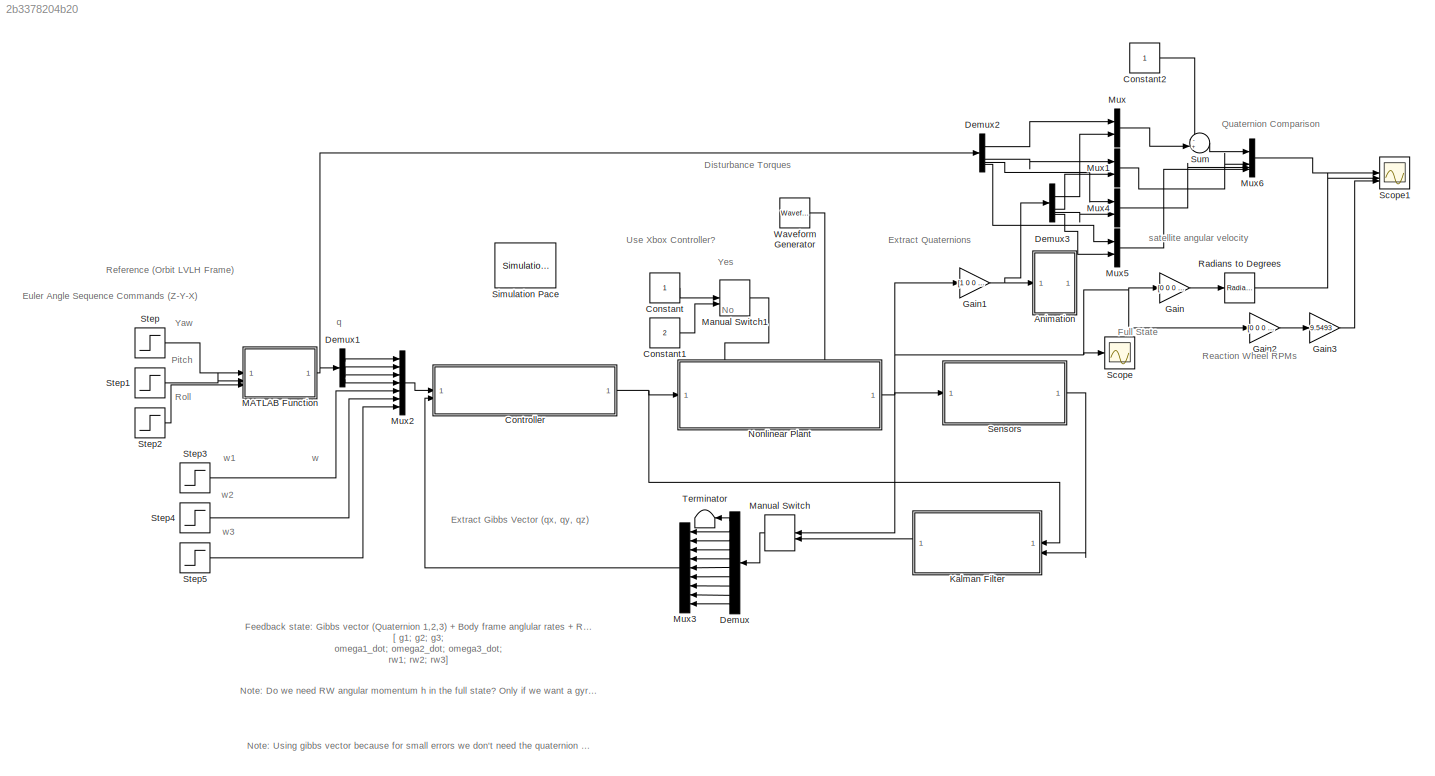
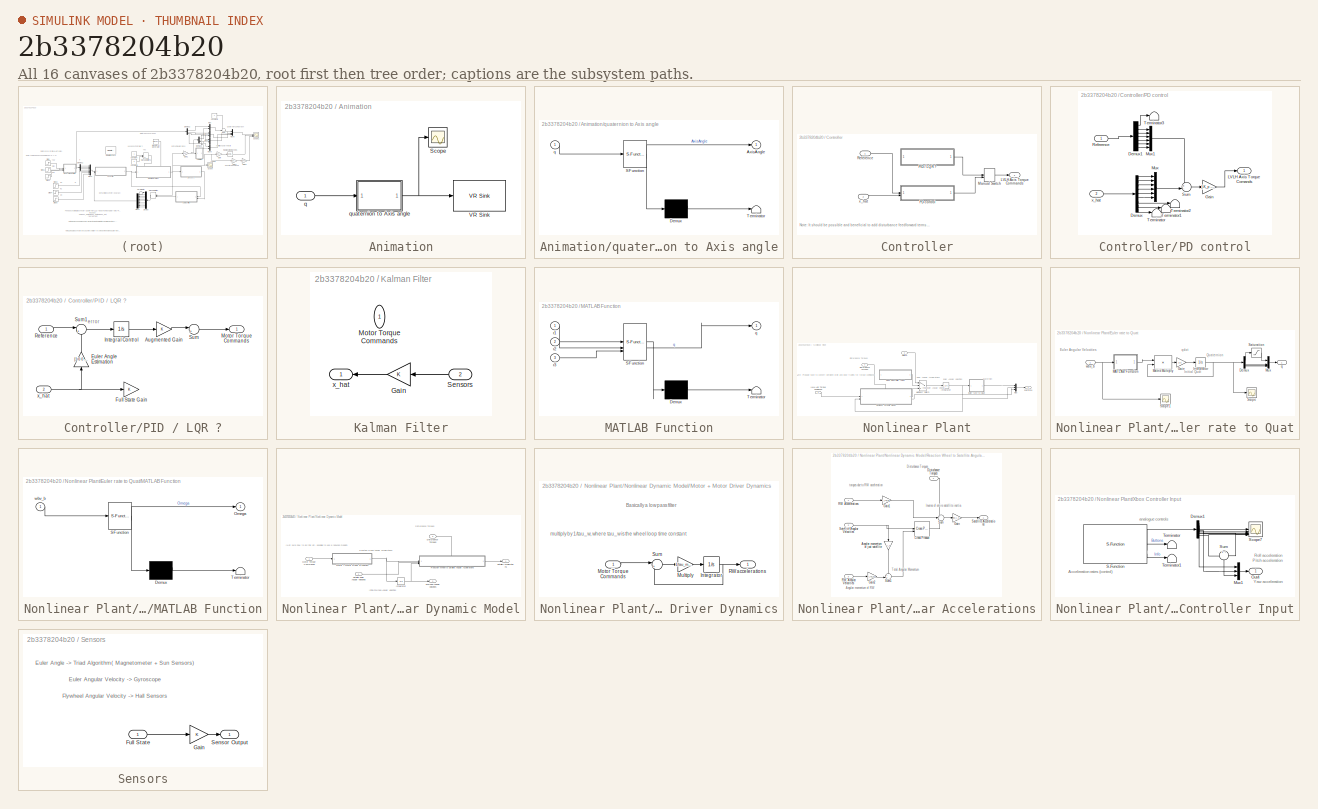
[diagram: thumbnail index - all 16 canvases of the model, root first then tree order]
MODEL slx_2b3378204b20
KIND model
CONFIG AbsTol = auto
CONFIG EnableMultiTasking = off
CONFIG FixedStep = auto
CONFIG MaxStep = auto
CONFIG MinStep = auto
CONFIG RelTol = 1e-3
CONFIG SampleTimeConstraint = Unconstrained
CONFIG SolverName = VariableStepAuto
CONFIG StartTime = 0.0
CONFIG StopTime = 600
BLOCK [SubSystem] Animation
BLOCK [Scope] Animation/Scope
  Floating = off
  NumInputPorts = 1
  ScopeSpecificationString = Simulink.scopes.TimeScopeBlockCfg('CurrentConfiguration', extmgr.ConfigurationSet(extmgr.Configuration('Core','General UI',true),extmgr.Configuration('Core','Source UI',true),extmgr.Configuration('Sources','WiredSimulink',true),extmgr.Configuration('Visuals','Time Domain',true,'SerializedDisplays',{struct('MinYLimReal','-1.00000','MaxYLimReal','1.00000','YLabelReal','','MinYLimMag','0.00000','MaxY...<+1433ch>
BLOCK [Reference] Animation/VR Sink  REF=vrlib/VR Sink
  InstantiateOnLoad = on
  SourceBlock = vrlib/VR Sink
  SourceType = Virtual Reality Sink
BLOCK [Inport] Animation/q
BLOCK [SubSystem] Animation/quaternion to Axis angle
  ErrorFcn = Stateflow.Translate.translate
  PermitHierarchicalResolution = ExplicitOnly
  SFBlockType = MATLAB Function
  TreatAsAtomicUnit = on
BLOCK [Demux] Animation/quaternion to Axis angle/ Demux 
  Outputs = 1
BLOCK [S-Function] Animation/quaternion to Axis angle/ SFunction 
  EnableBusSupport = on
  FunctionName = sf_sfun
  PortCounts = [1 2]
  SFcnIsStateOwnerBlock = off
  SFunctionDeploymentMode = off
  Tag = Stateflow S-Function 1
BLOCK [Terminator] Animation/quaternion to Axis angle/ Terminator 
BLOCK [Outport] Animation/quaternion to Axis angle/AxisAngle
BLOCK [Inport] Animation/quaternion to Axis angle/q
BLOCK [Constant] Constant
BLOCK [Constant] Constant1
  Value = 2
BLOCK [Constant] Constant2
BLOCK [SubSystem] Controller
BLOCK [Outport] Controller/LVLH Axis Torque Commands
BLOCK [ManualSwitch] Controller/Manual Switch
  CurrentSetting = 0
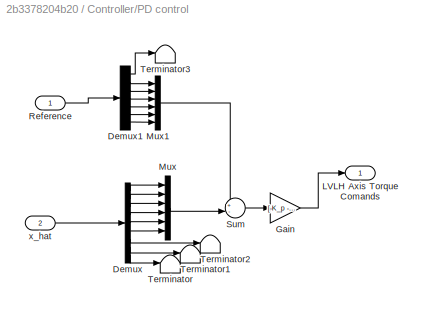
BLOCK [SubSystem] Controller/PD control
BLOCK [Demux] Controller/PD control/Demux
  Outputs = 9
BLOCK [Demux] Controller/PD control/Demux1
  Outputs = 7
BLOCK [Gain] Controller/PD control/Gain
  Gain = [-K_p -K_pd]
  Multiplication = Matrix(K*u) (u vector)
BLOCK [Outport] Controller/PD control/LVLH Axis Torque Comands
BLOCK [Mux] Controller/PD control/Mux
  DisplayOption = bar
  Inputs = 6
BLOCK [Mux] Controller/PD control/Mux1
  DisplayOption = bar
  Inputs = 6
BLOCK [Inport] Controller/PD control/Reference
BLOCK [Sum] Controller/PD control/Sum
  Inputs = +-|
BLOCK [Terminator] Controller/PD control/Terminator
BLOCK [Terminator] Controller/PD control/Terminator1
BLOCK [Terminator] Controller/PD control/Terminator2
BLOCK [Terminator] Controller/PD control/Terminator3
BLOCK [Inport] Controller/PD control/x_hat
  Port = 2
BLOCK [SubSystem] Controller/PID // LQR ?
BLOCK [Gain] Controller/PID // LQR ?/Augmented Gain
BLOCK [Gain] Controller/PID // LQR ?/Euler Angle Estimation
  Gain = [1 0 0 0 0 0 0 0 0; 0 1 0 0 0 0 0 0 0; 0 0 1 0 0 0 0 0 0]
  Multiplication = Matrix(K*u) (u vector)
  NameLocation = right
BLOCK [Gain] Controller/PID // LQR ?/Full State Gain
BLOCK [Integrator] Controller/PID // LQR ?/Integral Control
BLOCK [Outport] Controller/PID // LQR ?/Motor Torque Commands
BLOCK [Inport] Controller/PID // LQR ?/Reference
BLOCK [Sum] Controller/PID // LQR ?/Sum
  Inputs = |+-
BLOCK [Sum] Controller/PID // LQR ?/Sum1
  Inputs = |+-
BLOCK [Inport] Controller/PID // LQR ?/x_hat
  Port = 2
BLOCK [Inport] Controller/Reference
BLOCK [Inport] Controller/x_hat
  Port = 2
BLOCK [Demux] Demux
  Outputs = 10
BLOCK [Demux] Demux1
BLOCK [Demux] Demux2
BLOCK [Demux] Demux3
BLOCK [Gain] Gain
  Gain = [0 0 0 0 1 0 0 0 0 0; 0 0 0 0 0 1 0 0 0 0; 0 0 0 0 0 0 1 0 0 0]
  Multiplication = Matrix(K*u) (u vector)
BLOCK [Gain] Gain1
  Gain = [1 0 0 0 0 0 0 0 0 0; 0 1 0 0 0 0 0 0 0 0; 0 0 1 0 0 0 0 0 0 0; 0 0 0 1 0 0 0 0 0 0]
  Multiplication = Matrix(K*u) (u vector)
BLOCK [Gain] Gain2
  Gain = [0 0 0 0 0 0 0 1 0 0; 0 0 0 0 0 0 0 0 1 0; 0 0 0 0 0 0 0 0 0 1]
  Multiplication = Matrix(K*u) (u vector)
BLOCK [Gain] Gain3
  Gain = 9.5493
BLOCK [SubSystem] Kalman Filter
BLOCK [Gain] Kalman Filter/Gain
BLOCK [Inport] Kalman Filter/Motor Torque Commands
  NameLocation = right
BLOCK [Inport] Kalman Filter/Sensors
  Port = 2
BLOCK [Outport] Kalman Filter/x_hat
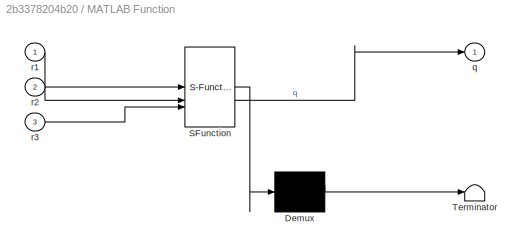
BLOCK [SubSystem] MATLAB Function
  ErrorFcn = Stateflow.Translate.translate
  PermitHierarchicalResolution = ExplicitOnly
  SFBlockType = MATLAB Function
  TreatAsAtomicUnit = on
BLOCK [Demux] MATLAB Function/ Demux 
  Outputs = 1
BLOCK [S-Function] MATLAB Function/ SFunction 
  EnableBusSupport = on
  FunctionName = sf_sfun
  PortCounts = [3 2]
  SFcnIsStateOwnerBlock = off
  SFunctionDeploymentMode = off
  Tag = Stateflow S-Function 3
BLOCK [Terminator] MATLAB Function/ Terminator 
BLOCK [Outport] MATLAB Function/q
BLOCK [Inport] MATLAB Function/r1
BLOCK [Inport] MATLAB Function/r2
  Port = 2
BLOCK [Inport] MATLAB Function/r3
  Port = 3
BLOCK [ManualSwitch] Manual Switch
BLOCK [ManualSwitch] Manual Switch1
  CurrentSetting = 0
BLOCK [Mux] Mux
  DisplayOption = bar
  Inputs = 2
BLOCK [Mux] Mux1
  DisplayOption = bar
  Inputs = 2
BLOCK [Mux] Mux2
  DisplayOption = bar
  Inputs = 7
BLOCK [Mux] Mux3
  DisplayOption = bar
  Inputs = 9
BLOCK [Mux] Mux4
  DisplayOption = bar
  Inputs = 2
BLOCK [Mux] Mux5
  DisplayOption = bar
  Inputs = 2
BLOCK [Mux] Mux6
  DisplayOption = bar
BLOCK [SubSystem] Nonlinear Plant
  PortSchema = {"entries":[{"content":{"sides":[{"content":{"connectorIds":["In1"]},"type":"ConnectorPlacement.EquallySpacedRectSide","uuid":"9b91c08c-2a90-4f12-ae99-41b2d0c7dbbf"},{"content":{"connectorIds":["Out1"],"side":"RIGHT"},"type":"ConnectorPlacement.EquallySpacedRectSide","uuid":"14ab69da-e910-4abb-8476-8d8dff4f3eb1"},{"content":{"connectorIds":["In2","In3"],"side":"TOP"},"type":"ConnectorPlacement.Equ...<+251ch>
BLOCK [Inport] Nonlinear Plant/Disturbance Torques
  Port = 3
BLOCK [SubSystem] Nonlinear Plant/Euler rate to Quat
BLOCK [Demux] Nonlinear Plant/Euler rate to Quat/Demux
BLOCK [Gain] Nonlinear Plant/Euler rate to Quat/Gain
  Gain = 1/2
BLOCK [Integrator] Nonlinear Plant/Euler rate to Quat/Integrator
  InitialCondition = [1 0 0 0]
BLOCK [SubSystem] Nonlinear Plant/Euler rate to Quat/MATLAB Function
  ErrorFcn = Stateflow.Translate.translate
  PermitHierarchicalResolution = ExplicitOnly
  SFBlockType = MATLAB Function
  TreatAsAtomicUnit = on
BLOCK [Demux] Nonlinear Plant/Euler rate to Quat/MATLAB Function/ Demux 
  Outputs = 1
BLOCK [S-Function] Nonlinear Plant/Euler rate to Quat/MATLAB Function/ SFunction 
  EnableBusSupport = on
  FunctionName = sf_sfun
  PortCounts = [1 2]
  SFcnIsStateOwnerBlock = off
  SFunctionDeploymentMode = off
  Tag = Stateflow S-Function 2
BLOCK [Terminator] Nonlinear Plant/Euler rate to Quat/MATLAB Function/ Terminator 
BLOCK [Outport] Nonlinear Plant/Euler rate to Quat/MATLAB Function/Omega
BLOCK [Inport] Nonlinear Plant/Euler rate to Quat/MATLAB Function/wbv_b
BLOCK [Product] Nonlinear Plant/Euler rate to Quat/Matrix Multiply
  Multiplication = Matrix(*)
BLOCK [Mux] Nonlinear Plant/Euler rate to Quat/Mux
  DisplayOption = bar
BLOCK [Saturate] Nonlinear Plant/Euler rate to Quat/Saturation
  LowerLimit = -1
  UpperLimit = 1
BLOCK [Scope] Nonlinear Plant/Euler rate to Quat/Scope
  Floating = off
  NumInputPorts = 1
  ScopeSpecificationString = Simulink.scopes.TimeScopeBlockCfg('CurrentConfiguration', extmgr.ConfigurationSet(extmgr.Configuration('Core','General UI',true),extmgr.Configuration('Core','Source UI',true),extmgr.Configuration('Sources','WiredSimulink',true,'DataLoggingVariableName','ScopeData7'),extmgr.Configuration('Visuals','Time Domain',true,'SerializedDisplays',{struct('MinYLimReal','-1.21752','MaxYLimReal','1.24639','YLab...<+1445ch>
BLOCK [Scope] Nonlinear Plant/Euler rate to Quat/Scope1
  Floating = off
  NumInputPorts = 1
  ScopeSpecificationString = Simulink.scopes.TimeScopeBlockCfg('CurrentConfiguration', extmgr.ConfigurationSet(extmgr.Configuration('Core','General UI',true),extmgr.Configuration('Core','Source UI',true),extmgr.Configuration('Sources','WiredSimulink',true,'DataLoggingVariableName','ScopeData8'),extmgr.Configuration('Visuals','Time Domain',true,'SerializedDisplays',{struct('MinYLimReal','-4.26022','MaxYLimReal','6.20803','YLab...<+1414ch>
BLOCK [Outport] Nonlinear Plant/Euler rate to Quat/q
BLOCK [Inport] Nonlinear Plant/Euler rate to Quat/wbv_b
BLOCK [Outport] Nonlinear Plant/Full State
BLOCK [Integrator] Nonlinear Plant/Integrator
  InitialCondition = [0.1 0.1 0.1]
BLOCK [Inport] Nonlinear Plant/LVLH Axis Torque Commands
BLOCK [MultiPortSwitch] Nonlinear Plant/Multiport Switch
  InputSameDT = off
  Inputs = 2
  SaturateOnIntegerOverflow = off
BLOCK [Mux] Nonlinear Plant/Mux
  DisplayOption = bar
  Inputs = 3
BLOCK [SubSystem] Nonlinear Plant/Nonlinear Dynamic Model
  PortSchema = {"entries":[{"content":{"sides":[{"content":{"connectorIds":["In1","In2"]},"type":"ConnectorPlacement.EquallySpacedRectSide","uuid":"b133188e-88ab-4812-87e5-a2cae8ba4a28"},{"content":{"connectorIds":["Out1","Out2"],"side":"RIGHT"},"type":"ConnectorPlacement.EquallySpacedRectSide","uuid":"aa801b93-c7f4-4f35-9e6f-1c95a6cb7d8e"},{"content":{"connectorIds":["In3"],"side":"TOP"},"type":"ConnectorPlacem...<+258ch>
BLOCK [Inport] Nonlinear Plant/Nonlinear Dynamic Model/Disturbance Torques
  Port = 3
BLOCK [Outport] Nonlinear Plant/Nonlinear Dynamic Model/Flywheel Angular Velocities
  Port = 2
BLOCK [Integrator] Nonlinear Plant/Nonlinear Dynamic Model/Integrator
BLOCK [SubSystem] Nonlinear Plant/Nonlinear Dynamic Model/Motor + Motor Driver Dynamics
BLOCK [Integrator] Nonlinear Plant/Nonlinear Dynamic Model/Motor + Motor Driver Dynamics/Integrator
BLOCK [Inport] Nonlinear Plant/Nonlinear Dynamic Model/Motor + Motor Driver Dynamics/Motor Torque Commands
BLOCK [Gain] Nonlinear Plant/Nonlinear Dynamic Model/Motor + Motor Driver Dynamics/Multiply
  Gain = 1/tau_motor_loop
BLOCK [Outport] Nonlinear Plant/Nonlinear Dynamic Model/Motor + Motor Driver Dynamics/RW accelerations
BLOCK [Sum] Nonlinear Plant/Nonlinear Dynamic Model/Motor + Motor Driver Dynamics/Sum
  Inputs = |+-
BLOCK [Inport] Nonlinear Plant/Nonlinear Dynamic Model/Motor Torque Commands
BLOCK [SubSystem] Nonlinear Plant/Nonlinear Dynamic Model/Reaction Wheel to Satellite Angular Accelerations
  PortSchema = {"entries":[{"content":{"sides":[{"content":{"connectorIds":["In1","In2","In3"]},"type":"ConnectorPlacement.EquallySpacedRectSide","uuid":"f49d1d70-9e85-4e1d-b156-8793e3211305"},{"content":{"connectorIds":["Out1"],"side":"RIGHT"},"type":"ConnectorPlacement.EquallySpacedRectSide","uuid":"35de67bb-178b-46d3-aa80-b5d9a68f06e3"},{"content":{"connectorIds":["In4"],"side":"TOP"},"type":"ConnectorPlaceme...<+257ch>
BLOCK [Gain] Nonlinear Plant/Nonlinear Dynamic Model/Reaction Wheel to Satellite Angular Accelerations/Angular momentum of just satellite
  Gain = I_s
  Multiplication = Matrix(K*u) (u vector)
  NameLocation = left
BLOCK [Reference] Nonlinear Plant/Nonlinear Dynamic Model/Reaction Wheel to Satellite Angular Accelerations/Cross Product  REF=matrix_library/Cross Product
  LibrarySourceBlock = simulink/Matrix\nOperations/Cross Product
  SourceBlock = matrix_library/Cross Product
  SourceType = CrossProduct
BLOCK [Inport] Nonlinear Plant/Nonlinear Dynamic Model/Reaction Wheel to Satellite Angular Accelerations/Disturbance Torques
  Port = 4
BLOCK [Gain] Nonlinear Plant/Nonlinear Dynamic Model/Reaction Wheel to Satellite Angular Accelerations/Gain
  Gain = inv_I_s
  Multiplication = Matrix(K*u) (u vector)
BLOCK [Gain] Nonlinear Plant/Nonlinear Dynamic Model/Reaction Wheel to Satellite Angular Accelerations/Gain1
  Gain = I_rw_zz
BLOCK [Gain] Nonlinear Plant/Nonlinear Dynamic Model/Reaction Wheel to Satellite Angular Accelerations/Gain2
  Gain = I_rw_zz
BLOCK [Inport] Nonlinear Plant/Nonlinear Dynamic Model/Reaction Wheel to Satellite Angular Accelerations/RW Accelerations
BLOCK [Inport] Nonlinear Plant/Nonlinear Dynamic Model/Reaction Wheel to Satellite Angular Accelerations/RW Angular Velocities
  Port = 3
BLOCK [Outport] Nonlinear Plant/Nonlinear Dynamic Model/Reaction Wheel to Satellite Angular Accelerations/Satellite Accelerations
BLOCK [Inport] Nonlinear Plant/Nonlinear Dynamic Model/Reaction Wheel to Satellite Angular Accelerations/Satellite Angular Velocities
  Port = 2
BLOCK [Sum] Nonlinear Plant/Nonlinear Dynamic Model/Reaction Wheel to Satellite Angular Accelerations/Sum
  Inputs = +--
BLOCK [Sum] Nonlinear Plant/Nonlinear Dynamic Model/Reaction Wheel to Satellite Angular Accelerations/Sum1
  Inputs = ++|
BLOCK [Outport] Nonlinear Plant/Nonlinear Dynamic Model/Satellite Accelerations
BLOCK [Inport] Nonlinear Plant/Nonlinear Dynamic Model/Satellite Euler Angular Velocities
  Port = 2
BLOCK [Inport] Nonlinear Plant/Switch
  Port = 2
BLOCK [SubSystem] Nonlinear Plant/Xbox Controller Input
BLOCK [Demux] Nonlinear Plant/Xbox Controller Input/Demux1
  Outputs = 6
BLOCK [Mux] Nonlinear Plant/Xbox Controller Input/Mux1
  DisplayOption = bar
  Inputs = 3
BLOCK [Outport] Nonlinear Plant/Xbox Controller Input/Out4
BLOCK [S-Function] Nonlinear Plant/Xbox Controller Input/S-Function
  EnableBusSupport = off
  FunctionName = XInput_Controller_SFun
  Parameters = 1
  SFcnIsStateOwnerBlock = off
  SFunctionDeploymentMode = off
BLOCK [Scope] Nonlinear Plant/Xbox Controller Input/Scope7
  Floating = off
  NumInputPorts = 6
  ScopeSpecificationString = Simulink.scopes.TimeScopeBlockCfg('CurrentConfiguration', extmgr.ConfigurationSet(extmgr.Configuration('Core','General UI',true),extmgr.Configuration('Core','Source UI',true),extmgr.Configuration('Sources','WiredSimulink',true,'DataLoggingVariableName','ScopeData1'),extmgr.Configuration('Visuals','Time Domain',true,'SerializedDisplays',{struct('MinYLimReal','-1.00000','MaxYLimReal','1.00000','YLab...<+4816ch>
BLOCK [Sum] Nonlinear Plant/Xbox Controller Input/Sum
  Inputs = +-
  NameLocation = left
BLOCK [Terminator] Nonlinear Plant/Xbox Controller Input/Terminator
BLOCK [Terminator] Nonlinear Plant/Xbox Controller Input/Terminator1
BLOCK [Reference] Radians to Degrees  REF=simulink_extras/Transformations/Radians
to Degrees
  SourceBlock = simulink_extras/Transformations/Radians\nto Degrees
  SourceType = RadiansToDegrees
BLOCK [Scope] Scope
  Floating = off
  NumInputPorts = 1
  ScopeSpecificationString = Simulink.scopes.TimeScopeBlockCfg('CurrentConfiguration', extmgr.ConfigurationSet(extmgr.Configuration('Core','General UI',true),extmgr.Configuration('Core','Source UI',true),extmgr.Configuration('Sources','WiredSimulink',true,'DataLoggingVariableName','ScopeData1'),extmgr.Configuration('Visuals','Time Domain',true,'SerializedDisplays',{struct('MinYLimReal','-46.58169','MaxYLimReal','33.52658','YL...<+1680ch>
BLOCK [Scope] Scope1
  Floating = off
  NumInputPorts = 3
  ScopeSpecificationString = Simulink.scopes.TimeScopeBlockCfg('CurrentConfiguration', extmgr.ConfigurationSet(extmgr.Configuration('Core','General UI',true),extmgr.Configuration('Core','Source UI',true),extmgr.Configuration('Sources','WiredSimulink',true,'DataLoggingVariableName','ScopeData1'),extmgr.Configuration('Visuals','Time Domain',true,'SerializedDisplays',{struct('MinYLimReal','-0.29234','MaxYLimReal','0.40661','YLab...<+3101ch>
BLOCK [SubSystem] Sensors
BLOCK [Inport] Sensors/Full State
BLOCK [Gain] Sensors/Gain
BLOCK [Outport] Sensors/Sensor Output
BLOCK [Reference] Simulation Pace  REF=aerolibanimutils/Simulation Pace
  AttributesFormatString = %<SleepMode>\n%<SimulationPace> sec/sec
  SourceBlock = aerolibanimutils/Simulation Pace
  SourceType = Simulation Pace
BLOCK [Step] Step
  After = 0.1
  SampleTime = 0
  Time = 2
BLOCK [Step] Step1
  After = 0.5
  SampleTime = 0
  Time = 2
BLOCK [Step] Step2
  After = -0.3
  SampleTime = 0
  Time = 2
BLOCK [Step] Step3
  After = 0
  SampleTime = 0
  Time = 2
BLOCK [Step] Step4
  After = 0
  SampleTime = 0
  Time = 2
BLOCK [Step] Step5
  After = 0
  SampleTime = 0
  Time = 2
BLOCK [Sum] Sum
  Inputs = -+|
BLOCK [Terminator] Terminator
BLOCK [Reference] Waveform Generator  REF=simulink/Sources/Waveform
Generator
  SourceBlock = simulink/Sources/Waveform\nGenerator
  SourceType = WaveformGenerator
ANNOTATION (root): Disturbance Torques
ANNOTATION (root): Euler Angle Sequence Commands (Z-Y-X)
ANNOTATION (root): Extract Gibbs Vector (qx, qy, qz)
ANNOTATION (root): Extract Quaternions
ANNOTATION (root): Feedback state: Gibbs vector (Quaternion 1,2,3) + Body frame anglular rates + RW rpms? [ g1; g2; g3; omega1_dot; omega2_dot; omega3_dot; rw1; rw2; rw3]
ANNOTATION (root): Full State
ANNOTATION (root): No
ANNOTATION (root): Note: Do we need RW angular momentum h in the full state? Only if we want a gyroscopic feedforward term
ANNOTATION (root): Note: Using gibbs vector because for small errors we don't need the quaternion corresponding to theta
ANNOTATION (root): Pitch
ANNOTATION (root): Quaternion Comparison
ANNOTATION (root): Reaction Wheel RPMs
ANNOTATION (root): Reference (Orbit LVLH Frame)
ANNOTATION (root): Roll
ANNOTATION (root): Use Xbox Controller?
ANNOTATION (root): Yaw
ANNOTATION (root): Yes
ANNOTATION (root): q
ANNOTATION (root): satellite angular velocity
ANNOTATION (root): w
ANNOTATION (root): w1
ANNOTATION (root): w2
ANNOTATION (root): w3
ANNOTATION Controller: Note: It should be possible and beneficial to add disturbance feedforward terms to compensate for the gyroscopic effect of the satellite & RW angular momentum
ANNOTATION Controller/PID // LQR ?: error
ANNOTATION Nonlinear Plant: Disturbance Torques
ANNOTATION Nonlinear Plant: Euler Angular Accelerations
ANNOTATION Nonlinear Plant: Euler Angular Velocities
ANNOTATION Nonlinear Plant: Initial Euler Angular Velocity
ANNOTATION Nonlinear Plant: Note: Probably have to convert between orbit and body frames for torque commands
ANNOTATION Nonlinear Plant: quaternion
ANNOTATION Nonlinear Plant/Euler rate to Quat: Euler Angular Velocities
ANNOTATION Nonlinear Plant/Euler rate to Quat: Initial Quat
ANNOTATION Nonlinear Plant/Euler rate to Quat: Quaternion
ANNOTATION Nonlinear Plant/Euler rate to Quat: qdot
ANNOTATION Nonlinear Plant/Nonlinear Dynamic Model: (Not sure how to do this yet, possible to use a reduced model?)
ANNOTATION Nonlinear Plant/Nonlinear Dynamic Model: Disturbance Torques
ANNOTATION Nonlinear Plant/Nonlinear Dynamic Model: Initial Flywheel Angular Velocities
ANNOTATION Nonlinear Plant/Nonlinear Dynamic Model: Reaction wheel Angular accelerations
ANNOTATION Nonlinear Plant/Nonlinear Dynamic Model/Motor + Motor Driver Dynamics: Basically a low pass filter
ANNOTATION Nonlinear Plant/Nonlinear Dynamic Model/Motor + Motor Driver Dynamics: multiply by 1/tau_w, where tau_w is the wheel loop time constant
ANNOTATION Nonlinear Plant/Nonlinear Dynamic Model/Reaction Wheel to Satellite Angular Accelerations: Angular momentum of RW
ANNOTATION Nonlinear Plant/Nonlinear Dynamic Model/Reaction Wheel to Satellite Angular Accelerations: Disturbance Torques
ANNOTATION Nonlinear Plant/Nonlinear Dynamic Model/Reaction Wheel to Satellite Angular Accelerations: Inverse of entire satellite inertia
ANNOTATION Nonlinear Plant/Nonlinear Dynamic Model/Reaction Wheel to Satellite Angular Accelerations: Total Angular Momentum
ANNOTATION Nonlinear Plant/Nonlinear Dynamic Model/Reaction Wheel to Satellite Angular Accelerations: torques due to RW acceleration
ANNOTATION Nonlinear Plant/Xbox Controller Input: Acceleration rates (control)
ANNOTATION Nonlinear Plant/Xbox Controller Input: Pitch acceleration
ANNOTATION Nonlinear Plant/Xbox Controller Input: Roll acceleration
ANNOTATION Nonlinear Plant/Xbox Controller Input: Yaw acceleration
ANNOTATION Nonlinear Plant/Xbox Controller Input: analogue controls
ANNOTATION Sensors: Euler Angle -> Triad Algorithm( Magnetometer + Sun Sensors)
ANNOTATION Sensors: Euler Angular Velocity -> Gyroscope
ANNOTATION Sensors: Flywheel Angular Velocity -> Hall Sensors
LINE Animation/q:1 -> Animation/quaternion to Axis angle:1
NET Animation/quaternion to Axis angle:1 -> Animation/Scope:1, Animation/VR Sink:1
LINE Constant1:1 -> Manual Switch1:2
LINE Constant2:1 -> Sum:1
LINE Constant:1 -> Manual Switch1:1
LINE Controller/Manual Switch:1 -> Controller/LVLH Axis Torque Commands:1
LINE Controller/PD control/Demux1:1 -> Controller/PD control/Terminator3:1
LINE Controller/PD control/Demux1:2 -> Controller/PD control/Mux1:1
LINE Controller/PD control/Demux1:3 -> Controller/PD control/Mux1:2
LINE Controller/PD control/Demux1:4 -> Controller/PD control/Mux1:3
LINE Controller/PD control/Demux1:5 -> Controller/PD control/Mux1:4
LINE Controller/PD control/Demux1:6 -> Controller/PD control/Mux1:5
LINE Controller/PD control/Demux1:7 -> Controller/PD control/Mux1:6
LINE Controller/PD control/Demux:1 -> Controller/PD control/Mux:1
LINE Controller/PD control/Demux:2 -> Controller/PD control/Mux:2
LINE Controller/PD control/Demux:3 -> Controller/PD control/Mux:3
LINE Controller/PD control/Demux:4 -> Controller/PD control/Mux:4
LINE Controller/PD control/Demux:5 -> Controller/PD control/Mux:5
LINE Controller/PD control/Demux:6 -> Controller/PD control/Mux:6
LINE Controller/PD control/Demux:7 -> Controller/PD control/Terminator2:1
LINE Controller/PD control/Demux:8 -> Controller/PD control/Terminator1:1
LINE Controller/PD control/Demux:9 -> Controller/PD control/Terminator:1
LINE Controller/PD control/Gain:1 -> Controller/PD control/LVLH Axis Torque Comands:1
LINE Controller/PD control/Mux1:1 -> Controller/PD control/Sum:1
LINE Controller/PD control/Mux:1 -> Controller/PD control/Sum:2
LINE Controller/PD control/Reference:1 -> Controller/PD control/Demux1:1
LINE Controller/PD control/Sum:1 -> Controller/PD control/Gain:1
LINE Controller/PD control/x_hat:1 -> Controller/PD control/Demux:1
LINE Controller/PD control:1 -> Controller/Manual Switch:2
LINE Controller/PID // LQR ?/Augmented Gain:1 -> Controller/PID // LQR ?/Sum:1
LINE Controller/PID // LQR ?/Euler Angle Estimation:1 -> Controller/PID // LQR ?/Sum1:2
LINE Controller/PID // LQR ?/Integral Control:1 -> Controller/PID // LQR ?/Augmented Gain:1
LINE Controller/PID // LQR ?/Reference:1 -> Controller/PID // LQR ?/Sum1:1
LINE Controller/PID // LQR ?/Sum1:1 -> Controller/PID // LQR ?/Integral Control:1
LINE Controller/PID // LQR ?/Sum:1 -> Controller/PID // LQR ?/Motor Torque Commands:1
NET Controller/PID // LQR ?/x_hat:1 -> Controller/PID // LQR ?/Euler Angle Estimation:1, Controller/PID // LQR ?/Full State Gain:1
LINE Controller/PID // LQR ?:1 -> Controller/Manual Switch:1
LINE Controller/Reference:1 -> Controller/PD control:1
LINE Controller/x_hat:1 -> Controller/PD control:2
NET Controller:1 -> Kalman Filter:1, Nonlinear Plant:1
LINE Demux1:1 -> Mux2:1
LINE Demux1:2 -> Mux2:2
LINE Demux1:3 -> Mux2:3
LINE Demux1:4 -> Mux2:4
LINE Demux2:1 -> Mux:1
LINE Demux2:2 -> Mux1:1
LINE Demux2:3 -> Mux4:1
LINE Demux2:4 -> Mux5:1
LINE Demux3:1 -> Mux:2
LINE Demux3:2 -> Mux1:2
LINE Demux3:3 -> Mux4:2
LINE Demux3:4 -> Mux5:2
LINE Demux:1 -> Terminator:1
LINE Demux:10 -> Mux3:9
LINE Demux:2 -> Mux3:1
LINE Demux:3 -> Mux3:2
LINE Demux:4 -> Mux3:3
LINE Demux:5 -> Mux3:4
LINE Demux:6 -> Mux3:5
LINE Demux:7 -> Mux3:6
LINE Demux:8 -> Mux3:7
LINE Demux:9 -> Mux3:8
NET Gain1:1 -> Animation:1, Demux3:1
LINE Gain2:1 -> Gain3:1
LINE Gain3:1 -> Scope1:3
LINE Gain:1 -> Radians to Degrees:1
LINE Kalman Filter/Gain:1 -> Kalman Filter/x_hat:1
LINE Kalman Filter/Sensors:1 -> Kalman Filter/Gain:1
LINE Kalman Filter:1 -> Manual Switch:2
NET MATLAB Function:1 -> Demux1:1, Demux2:1
LINE Manual Switch1:1 -> Nonlinear Plant:2
LINE Manual Switch:1 -> Demux:1
LINE Mux1:1 -> Mux6:2
LINE Mux2:1 -> Controller:1
LINE Mux3:1 -> Controller:2
LINE Mux4:1 -> Mux6:3
LINE Mux5:1 -> Mux6:4
LINE Mux6:1 -> Scope1:1
LINE Mux:1 -> Sum:2
LINE Nonlinear Plant/Disturbance Torques:1 -> Nonlinear Plant/Nonlinear Dynamic Model:3
LINE Nonlinear Plant/Euler rate to Quat/Demux:1 -> Nonlinear Plant/Euler rate to Quat/Saturation:1
LINE Nonlinear Plant/Euler rate to Quat/Demux:2 -> Nonlinear Plant/Euler rate to Quat/Mux:2
LINE Nonlinear Plant/Euler rate to Quat/Demux:3 -> Nonlinear Plant/Euler rate to Quat/Mux:3
LINE Nonlinear Plant/Euler rate to Quat/Demux:4 -> Nonlinear Plant/Euler rate to Quat/Mux:4
LINE Nonlinear Plant/Euler rate to Quat/Gain:1 -> Nonlinear Plant/Euler rate to Quat/Integrator:1
NET Nonlinear Plant/Euler rate to Quat/Integrator:1 -> Nonlinear Plant/Euler rate to Quat/Demux:1, Nonlinear Plant/Euler rate to Quat/Matrix Multiply:2, Nonlinear Plant/Euler rate to Quat/Scope:1
LINE Nonlinear Plant/Euler rate to Quat/MATLAB Function:1 -> Nonlinear Plant/Euler rate to Quat/Matrix Multiply:1
LINE Nonlinear Plant/Euler rate to Quat/Matrix Multiply:1 -> Nonlinear Plant/Euler rate to Quat/Gain:1
LINE Nonlinear Plant/Euler rate to Quat/Mux:1 -> Nonlinear Plant/Euler rate to Quat/q:1
LINE Nonlinear Plant/Euler rate to Quat/Saturation:1 -> Nonlinear Plant/Euler rate to Quat/Mux:1
NET Nonlinear Plant/Euler rate to Quat/wbv_b:1 -> Nonlinear Plant/Euler rate to Quat/MATLAB Function:1, Nonlinear Plant/Euler rate to Quat/Scope1:1
LINE Nonlinear Plant/Euler rate to Quat:1 -> Nonlinear Plant/Mux:1
NET Nonlinear Plant/Integrator:1 -> Nonlinear Plant/Euler rate to Quat:1, Nonlinear Plant/Mux:2, Nonlinear Plant/Nonlinear Dynamic Model:2
LINE Nonlinear Plant/LVLH Axis Torque Commands:1 -> Nonlinear Plant/Nonlinear Dynamic Model:1
LINE Nonlinear Plant/Multiport Switch:1 -> Nonlinear Plant/Integrator:1
LINE Nonlinear Plant/Mux:1 -> Nonlinear Plant/Full State:1
LINE Nonlinear Plant/Nonlinear Dynamic Model/Disturbance Torques:1 -> Nonlinear Plant/Nonlinear Dynamic Model/Reaction Wheel to Satellite Angular Accelerations:4
NET Nonlinear Plant/Nonlinear Dynamic Model/Integrator:1 -> Nonlinear Plant/Nonlinear Dynamic Model/Flywheel Angular Velocities:1, Nonlinear Plant/Nonlinear Dynamic Model/Reaction Wheel to Satellite Angular Accelerations:3
NET Nonlinear Plant/Nonlinear Dynamic Model/Motor + Motor Driver Dynamics/Integrator:1 -> Nonlinear Plant/Nonlinear Dynamic Model/Motor + Motor Driver Dynamics/RW accelerations:1, Nonlinear Plant/Nonlinear Dynamic Model/Motor + Motor Driver Dynamics/Sum:2
LINE Nonlinear Plant/Nonlinear Dynamic Model/Motor + Motor Driver Dynamics/Motor Torque Commands:1 -> Nonlinear Plant/Nonlinear Dynamic Model/Motor + Motor Driver Dynamics/Sum:1
LINE Nonlinear Plant/Nonlinear Dynamic Model/Motor + Motor Driver Dynamics/Multiply:1 -> Nonlinear Plant/Nonlinear Dynamic Model/Motor + Motor Driver Dynamics/Integrator:1
LINE Nonlinear Plant/Nonlinear Dynamic Model/Motor + Motor Driver Dynamics/Sum:1 -> Nonlinear Plant/Nonlinear Dynamic Model/Motor + Motor Driver Dynamics/Multiply:1
NET Nonlinear Plant/Nonlinear Dynamic Model/Motor + Motor Driver Dynamics:1 -> Nonlinear Plant/Nonlinear Dynamic Model/Integrator:1, Nonlinear Plant/Nonlinear Dynamic Model/Reaction Wheel to Satellite Angular Accelerations:1
LINE Nonlinear Plant/Nonlinear Dynamic Model/Motor Torque Commands:1 -> Nonlinear Plant/Nonlinear Dynamic Model/Motor + Motor Driver Dynamics:1
LINE Nonlinear Plant/Nonlinear Dynamic Model/Reaction Wheel to Satellite Angular Accelerations/Angular momentum of just satellite:1 -> Nonlinear Plant/Nonlinear Dynamic Model/Reaction Wheel to Satellite Angular Accelerations/Sum1:1
LINE Nonlinear Plant/Nonlinear Dynamic Model/Reaction Wheel to Satellite Angular Accelerations/Cross Product:1 -> Nonlinear Plant/Nonlinear Dynamic Model/Reaction Wheel to Satellite Angular Accelerations/Sum:3
LINE Nonlinear Plant/Nonlinear Dynamic Model/Reaction Wheel to Satellite Angular Accelerations/Disturbance Torques:1 -> Nonlinear Plant/Nonlinear Dynamic Model/Reaction Wheel to Satellite Angular Accelerations/Sum:1
LINE Nonlinear Plant/Nonlinear Dynamic Model/Reaction Wheel to Satellite Angular Accelerations/Gain1:1 -> Nonlinear Plant/Nonlinear Dynamic Model/Reaction Wheel to Satellite Angular Accelerations/Sum:2
LINE Nonlinear Plant/Nonlinear Dynamic Model/Reaction Wheel to Satellite Angular Accelerations/Gain2:1 -> Nonlinear Plant/Nonlinear Dynamic Model/Reaction Wheel to Satellite Angular Accelerations/Sum1:2
LINE Nonlinear Plant/Nonlinear Dynamic Model/Reaction Wheel to Satellite Angular Accelerations/Gain:1 -> Nonlinear Plant/Nonlinear Dynamic Model/Reaction Wheel to Satellite Angular Accelerations/Satellite Accelerations:1
LINE Nonlinear Plant/Nonlinear Dynamic Model/Reaction Wheel to Satellite Angular Accelerations/RW Accelerations:1 -> Nonlinear Plant/Nonlinear Dynamic Model/Reaction Wheel to Satellite Angular Accelerations/Gain1:1
LINE Nonlinear Plant/Nonlinear Dynamic Model/Reaction Wheel to Satellite Angular Accelerations/RW Angular Velocities:1 -> Nonlinear Plant/Nonlinear Dynamic Model/Reaction Wheel to Satellite Angular Accelerations/Gain2:1
NET Nonlinear Plant/Nonlinear Dynamic Model/Reaction Wheel to Satellite Angular Accelerations/Satellite Angular Velocities:1 -> Nonlinear Plant/Nonlinear Dynamic Model/Reaction Wheel to Satellite Angular Accelerations/Angular momentum of just satellite:1, Nonlinear Plant/Nonlinear Dynamic Model/Reaction Wheel to Satellite Angular Accelerations/Cross Product:1
LINE Nonlinear Plant/Nonlinear Dynamic Model/Reaction Wheel to Satellite Angular Accelerations/Sum1:1 -> Nonlinear Plant/Nonlinear Dynamic Model/Reaction Wheel to Satellite Angular Accelerations/Cross Product:2
LINE Nonlinear Plant/Nonlinear Dynamic Model/Reaction Wheel to Satellite Angular Accelerations/Sum:1 -> Nonlinear Plant/Nonlinear Dynamic Model/Reaction Wheel to Satellite Angular Accelerations/Gain:1
LINE Nonlinear Plant/Nonlinear Dynamic Model/Reaction Wheel to Satellite Angular Accelerations:1 -> Nonlinear Plant/Nonlinear Dynamic Model/Satellite Accelerations:1
LINE Nonlinear Plant/Nonlinear Dynamic Model/Satellite Euler Angular Velocities:1 -> Nonlinear Plant/Nonlinear Dynamic Model/Reaction Wheel to Satellite Angular Accelerations:2
LINE Nonlinear Plant/Nonlinear Dynamic Model:1 -> Nonlinear Plant/Multiport Switch:3
LINE Nonlinear Plant/Nonlinear Dynamic Model:2 -> Nonlinear Plant/Mux:3
LINE Nonlinear Plant/Switch:1 -> Nonlinear Plant/Multiport Switch:1
LINE Nonlinear Plant/Xbox Controller Input/Demux1:1 -> Nonlinear Plant/Xbox Controller Input/Scope7:1
NET Nonlinear Plant/Xbox Controller Input/Demux1:2 -> Nonlinear Plant/Xbox Controller Input/Mux1:1, Nonlinear Plant/Xbox Controller Input/Scope7:2
LINE Nonlinear Plant/Xbox Controller Input/Demux1:3 -> Nonlinear Plant/Xbox Controller Input/Scope7:3
NET Nonlinear Plant/Xbox Controller Input/Demux1:4 -> Nonlinear Plant/Xbox Controller Input/Mux1:2, Nonlinear Plant/Xbox Controller Input/Scope7:4
NET Nonlinear Plant/Xbox Controller Input/Demux1:5 -> Nonlinear Plant/Xbox Controller Input/Scope7:5, Nonlinear Plant/Xbox Controller Input/Sum:2
NET Nonlinear Plant/Xbox Controller Input/Demux1:6 -> Nonlinear Plant/Xbox Controller Input/Scope7:6, Nonlinear Plant/Xbox Controller Input/Sum:1
LINE Nonlinear Plant/Xbox Controller Input/Mux1:1 -> Nonlinear Plant/Xbox Controller Input/Out4:1
LINE Nonlinear Plant/Xbox Controller Input/S-Function:1 -> Nonlinear Plant/Xbox Controller Input/Demux1:1
LINE Nonlinear Plant/Xbox Controller Input/S-Function:2 -> Nonlinear Plant/Xbox Controller Input/Terminator:1
LINE Nonlinear Plant/Xbox Controller Input/S-Function:3 -> Nonlinear Plant/Xbox Controller Input/Terminator1:1
LINE Nonlinear Plant/Xbox Controller Input/Sum:1 -> Nonlinear Plant/Xbox Controller Input/Mux1:3
LINE Nonlinear Plant/Xbox Controller Input:1 -> Nonlinear Plant/Multiport Switch:2
NET Nonlinear Plant:1 -> Gain1:1, Gain2:1, Gain:1, Manual Switch:1, Scope:1, Sensors:1
LINE Radians to Degrees:1 -> Scope1:2
LINE Sensors/Full State:1 -> Sensors/Gain:1
LINE Sensors/Gain:1 -> Sensors/Sensor Output:1
LINE Sensors:1 -> Kalman Filter:2
LINE Step1:1 -> MATLAB Function:2
LINE Step2:1 -> MATLAB Function:3
LINE Step3:1 -> Mux2:5
LINE Step4:1 -> Mux2:6
LINE Step5:1 -> Mux2:7
LINE Step:1 -> MATLAB Function:1
LINE Sum:1 -> Mux6:1
LINE Waveform Generator:1 -> Nonlinear Plant:3
note: NET lines group one-source signal fan-out (src -> all destinations, sorted); 1:1 wires keep LINE
CHART Animation/quaternion to Axis angle states=1 transitions=1
  STATE_LABEL 'eML_blk_kernel()'
  STATE_LABEL 'SCRIPT:\nfunction AxisAngle = fcn(q)\n\nscale = 2*acos(q(1));\n\nx = q(2)/sqrt(1-q(1)^2);\ny = q(3)/sqrt(1-q(1)^2);\nz = q(4)/sqrt(1-q(1)^2);\n\nAxisAngle = [x,y,z, scale];\n'
CHART Nonlinear Plant/Euler rate to Quat/MATLAB Function states=1 transitions=1
  STATE_LABEL 'eML_blk_kernel()'
  STATE_LABEL 'SCRIPT:\nfunction Omega = fcn(wbv_b)\nwx = wbv_b(1);\nwy = wbv_b(2);\nwz = wbv_b(3);\n\n\nOmega = [...\n    0 -wx -wy -wz;\n    wx 0 wz -wy;\n    wy -wz 0 wx;\n    wz wy -wx 0];\n'
CHART MATLAB Function states=1 transitions=1
  STATE_LABEL 'eML_blk_kernel()'
  STATE_LABEL 'SCRIPT:\nfunction q = angle2quat( r1, r2, r3)\n%  ANGLE2QUAT Convert rotation angles to quaternion.\n%   Q = ANGLE2QUAT( R1, R2, R3 ) calculates the quaternion, Q, for given,\n%   R1, R2, R3.   R1 is an M array of first rotation angles.  R2 is an M\n%   array of second rotation angles.  R3 is an M array of third rotation\n%   angles.  Q returns an M-by-4 matrix containing M quaternions. Q has its\n%   sc...<+3608ch>'
CHART  states=0 transitions=0
CHART  states=0 transitions=0
CHART  states=0 transitions=0
